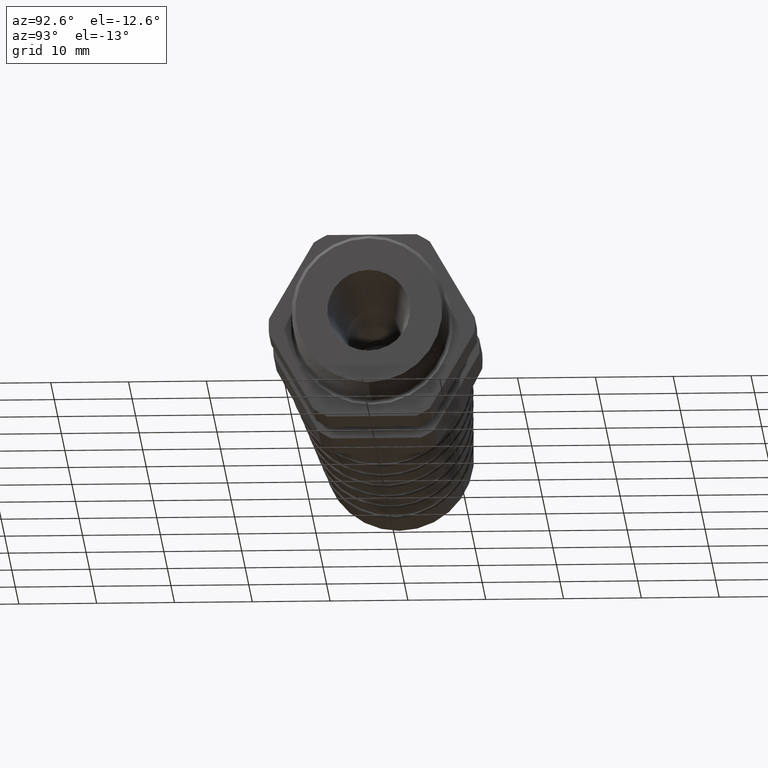
[diagram: clean part render]
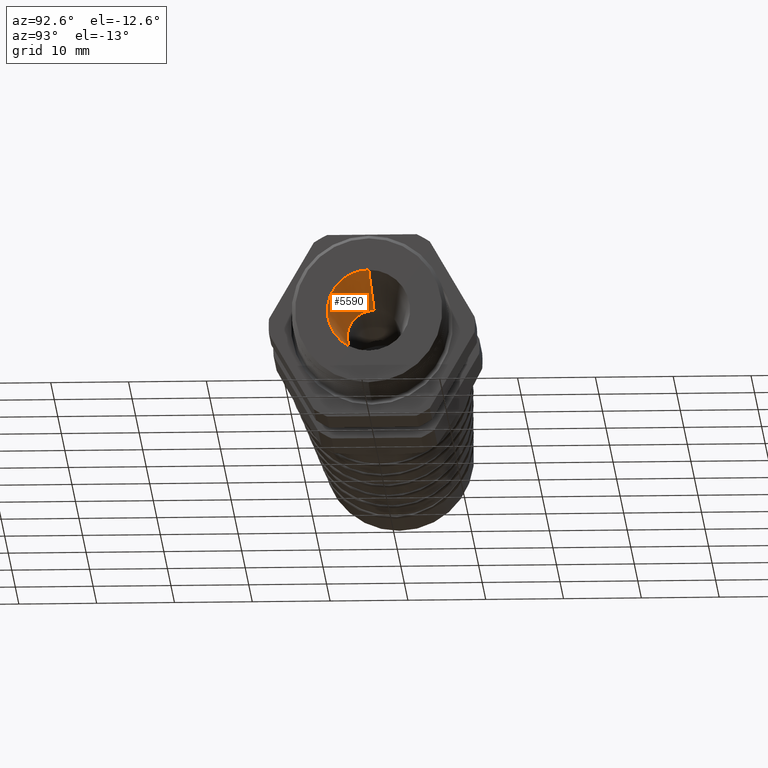
[diagram: same view with one face highlighted and labeled with its STEP entity id]
A machine part, auxiliary view. The second image highlights one B-rep face of the part: STEP entity #5590.
In plain terms, the highlighted conical surface has half-angle 7 deg.
Its self-contained STEP definition (entity closure, byte-faithful):
#2094 = CARTESIAN_POINT ( 'NONE',  ( -0.5659055118110234400, 0.0000000000000000000, -0.1350000000000000100 ) ) ;
#2095 = DIRECTION ( 'NONE',  ( 0.0000000000000000000, 0.0000000000000000000, -1.000000000000000000 ) ) ;
#2096 = DIRECTION ( 'NONE',  ( 1.000000000000000000, 0.0000000000000000000, 0.0000000000000000000 ) ) ;
#2097 = CARTESIAN_POINT ( 'NONE',  ( -0.5659055118110234400, 0.0000000000000000000, 0.0000000000000000000 ) ) ;
#2098 = AXIS2_PLACEMENT_3D ( 'NONE', #2097, #2096, #2095 ) ;
#2099 = CIRCLE ( 'NONE', #2098, 0.1350000000000000100 ) ;
#2100 = CARTESIAN_POINT ( 'NONE',  ( -0.5659055118110234400, 2.108816329049623800E-017, 0.1350000000000000100 ) ) ;
#2133 = DIRECTION ( 'NONE',  ( 0.9925461516413227600, 0.0000000000000000000, -0.1218693434051409100 ) ) ;
#2134 = VECTOR ( 'NONE', #2133, 39.37007874015748900 ) ;
#2135 = CARTESIAN_POINT ( 'NONE',  ( -0.5659055118110234400, 0.0000000000000000000, -0.1350000000000000100 ) ) ;
#2136 = LINE ( 'NONE', #2135, #2134 ) ;
#2137 = CARTESIAN_POINT ( 'NONE',  ( 0.03999999999999998000, 0.0000000000000000000, -0.2093958422163621200 ) ) ;
#2138 = DIRECTION ( 'NONE',  ( 0.0000000000000000000, 0.0000000000000000000, -1.000000000000000000 ) ) ;
#2139 = DIRECTION ( 'NONE',  ( 1.000000000000000000, 0.0000000000000000000, 0.0000000000000000000 ) ) ;
#2140 = CARTESIAN_POINT ( 'NONE',  ( 0.03999999999999998000, 0.0000000000000000000, 0.0000000000000000000 ) ) ;
#2141 = AXIS2_PLACEMENT_3D ( 'NONE', #2140, #2139, #2138 ) ;
#2142 = CIRCLE ( 'NONE', #2141, 0.2093958422163621200 ) ;
#2143 = CARTESIAN_POINT ( 'NONE',  ( 0.03999999999999998000, 2.564359479250321300E-017, 0.2093958422163621200 ) ) ;
#2144 = DIRECTION ( 'NONE',  ( 0.9925461516413227600, 1.492469013152954000E-017, 0.1218693434051409100 ) ) ;
#2145 = VECTOR ( 'NONE', #2144, 39.37007874015748900 ) ;
#2146 = CARTESIAN_POINT ( 'NONE',  ( -0.5659055118110234400, 1.653273178848926900E-017, 0.1350000000000000100 ) ) ;
#2147 = DIRECTION ( 'NONE',  ( 0.0000000000000000000, 0.0000000000000000000, -1.000000000000000000 ) ) ;
#2148 = DIRECTION ( 'NONE',  ( 1.000000000000000000, 0.0000000000000000000, 0.0000000000000000000 ) ) ;
#2149 = CARTESIAN_POINT ( 'NONE',  ( -0.5659055118110234400, 0.0000000000000000000, 0.0000000000000000000 ) ) ;
#2150 = AXIS2_PLACEMENT_3D ( 'NONE', #2149, #2148, #2147 ) ;
#2151 = CONICAL_SURFACE ( 'NONE', #2150, 0.1350000000000000100, 0.1221730476395964700 ) ;
#2152 = LINE ( 'NONE', #2146, #2145 ) ;
#2153 = FACE_OUTER_BOUND ( 'NONE', #5591, .T. ) ;
#5584 = VERTEX_POINT ( 'NONE', #2100 ) ;
#5586 = EDGE_CURVE ( 'NONE', #5584, #5587, #2099, .T. ) ;
#5587 = VERTEX_POINT ( 'NONE', #2094 ) ;
#5590 = ADVANCED_FACE ( 'NONE', ( #2153 ), #2151, .F. ) ;
#5591 = EDGE_LOOP ( 'NONE', ( #5592, #5593, #5596, #5600 ) ) ;
#5592 = ORIENTED_EDGE ( 'NONE', *, *, #5586, .F. ) ;
#5593 = ORIENTED_EDGE ( 'NONE', *, *, #5594, .T. ) ;
#5594 = EDGE_CURVE ( 'NONE', #5584, #5595, #2152, .T. ) ;
#5595 = VERTEX_POINT ( 'NONE', #2143 ) ;
#5596 = ORIENTED_EDGE ( 'NONE', *, *, #5597, .T. ) ;
#5597 = EDGE_CURVE ( 'NONE', #5595, #5598, #2142, .T. ) ;
#5598 = VERTEX_POINT ( 'NONE', #2137 ) ;
#5600 = ORIENTED_EDGE ( 'NONE', *, *, #5601, .F. ) ;
#5601 = EDGE_CURVE ( 'NONE', #5587, #5598, #2136, .T. ) ;